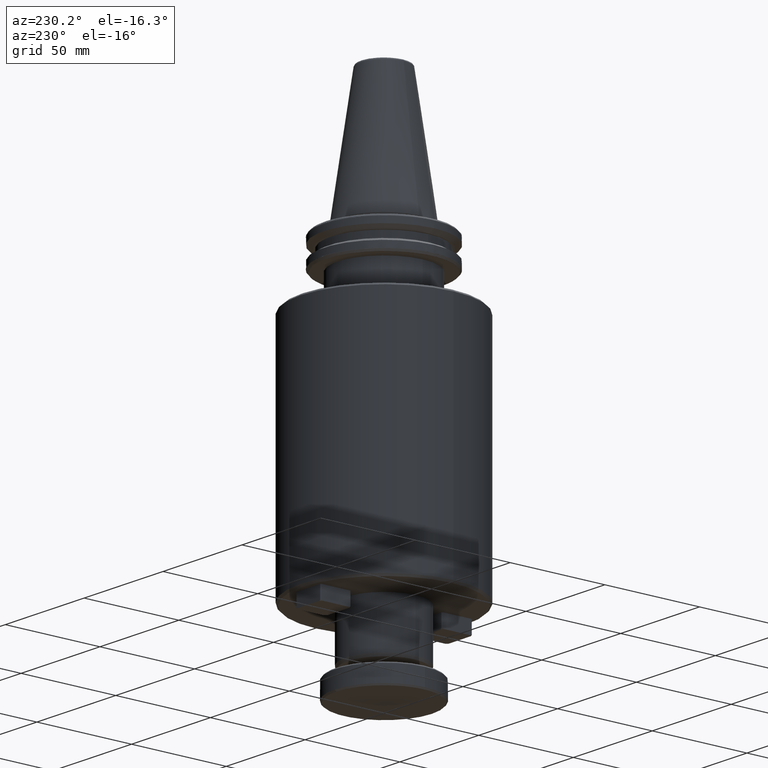
[diagram: clean part render]
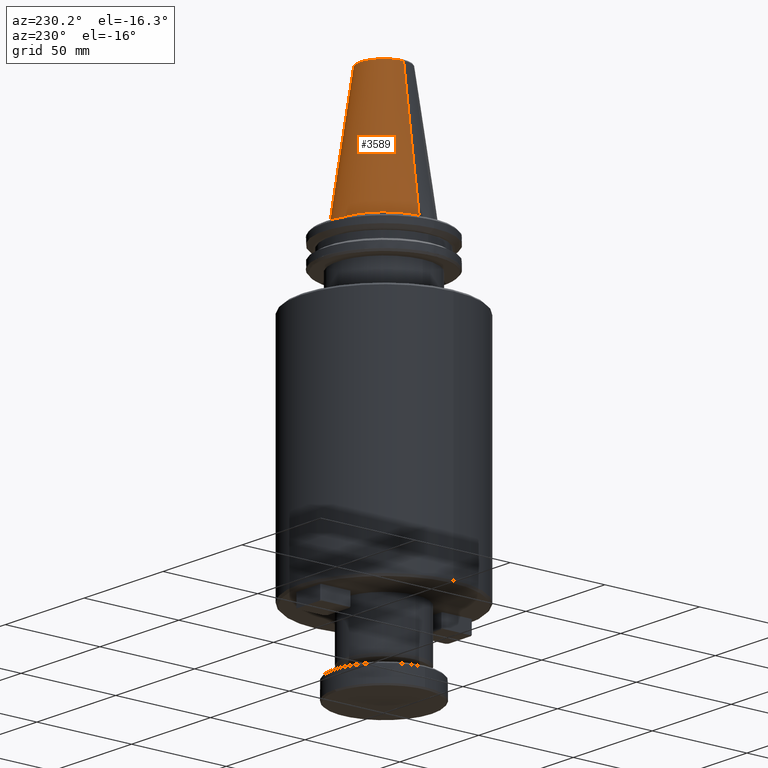
[diagram: same view with one face highlighted and labeled with its STEP entity id]
A machine part, auxiliary view. The second image highlights one B-rep face of the part: STEP entity #3589.
In plain terms, the highlighted conical surface has half-angle 8.297 deg.
Its self-contained STEP definition (entity closure, byte-faithful):
#12 = EDGE_LOOP ( 'NONE', ( #816, #711, #483, #715 ) ) ;
#68 = VERTEX_POINT ( 'NONE', #1368 ) ;
#483 = ORIENTED_EDGE ( 'NONE', *, *, #2769, .F. ) ;
#534 = CIRCLE ( 'NONE', #4208, 12.37469537611110800 ) ;
#583 = DIRECTION ( 'NONE',  ( 0.0000000000000000000, 0.0000000000000000000, -1.000000000000000000 ) ) ;
#711 = ORIENTED_EDGE ( 'NONE', *, *, #3923, .T. ) ;
#714 = VERTEX_POINT ( 'NONE', #2924 ) ;
#715 = ORIENTED_EDGE ( 'NONE', *, *, #1899, .F. ) ;
#816 = ORIENTED_EDGE ( 'NONE', *, *, #3818, .T. ) ;
#858 = CARTESIAN_POINT ( 'NONE',  ( -22.22500000000000100, 0.0000000000000000000, 0.0000000000000000000 ) ) ;
#874 = DIRECTION ( 'NONE',  ( -0.1443082272673070500, 0.0000000000000000000, -0.9895327864921743500 ) ) ;
#910 = LINE ( 'NONE', #1049, #957 ) ;
#957 = VECTOR ( 'NONE', #2401, 1000.000000000000000 ) ;
#1001 = CARTESIAN_POINT ( 'NONE',  ( 0.0000000000000000000, 0.0000000000000000000, 0.0000000000000000000 ) ) ;
#1014 = CARTESIAN_POINT ( 'NONE',  ( -12.37469537611110800, 0.0000000000000000000, 67.54430822726729400 ) ) ;
#1020 = CARTESIAN_POINT ( 'NONE',  ( 0.0000000000000000000, 0.0000000000000000000, 67.54430822726729400 ) ) ;
#1049 = CARTESIAN_POINT ( 'NONE',  ( 22.22500000000000100, 2.721777511104992800E-015, 0.0000000000000000000 ) ) ;
#1132 = LINE ( 'NONE', #858, #1394 ) ;
#1356 = DIRECTION ( 'NONE',  ( 1.000000000000000000, 0.0000000000000000000, 9.822541477422708000E-017 ) ) ;
#1368 = CARTESIAN_POINT ( 'NONE',  ( 12.37469537611110800, 2.118620309691397300E-015, 67.54430822726729400 ) ) ;
#1375 = DIRECTION ( 'NONE',  ( -1.000000000000000000, 0.0000000000000000000, 0.0000000000000000000 ) ) ;
#1394 = VECTOR ( 'NONE', #874, 1000.000000000000000 ) ;
#1776 = VERTEX_POINT ( 'NONE', #1014 ) ;
#1899 = EDGE_CURVE ( 'NONE', #1776, #714, #1132, .T. ) ;
#2028 = AXIS2_PLACEMENT_3D ( 'NONE', #3257, #583, #2934 ) ;
#2242 = CIRCLE ( 'NONE', #3361, 22.22500000000000500 ) ;
#2401 = DIRECTION ( 'NONE',  ( 0.1443082272673070500, 1.767266086135363700E-017, -0.9895327864921743500 ) ) ;
#2769 = EDGE_CURVE ( 'NONE', #714, #3292, #2242, .T. ) ;
#2924 = CARTESIAN_POINT ( 'NONE',  ( -22.22500000000000100, 0.0000000000000000000, 0.0000000000000000000 ) ) ;
#2934 = DIRECTION ( 'NONE',  ( -1.000000000000000000, 0.0000000000000000000, 0.0000000000000000000 ) ) ;
#3102 = FACE_OUTER_BOUND ( 'NONE', #12, .T. ) ;
#3257 = CARTESIAN_POINT ( 'NONE',  ( 0.0000000000000000000, 0.0000000000000000000, 0.0000000000000000000 ) ) ;
#3292 = VERTEX_POINT ( 'NONE', #3483 ) ;
#3328 = DIRECTION ( 'NONE',  ( -0.0000000000000000000, -0.0000000000000000000, -1.000000000000000000 ) ) ;
#3341 = DIRECTION ( 'NONE',  ( 0.0000000000000000000, 0.0000000000000000000, -1.000000000000000000 ) ) ;
#3361 = AXIS2_PLACEMENT_3D ( 'NONE', #1001, #3328, #1356 ) ;
#3396 = CONICAL_SURFACE ( 'NONE', #2028, 22.22500000000000100, 0.1448138465474190500 ) ;
#3483 = CARTESIAN_POINT ( 'NONE',  ( 22.22500000000000100, 2.721777511104992800E-015, 0.0000000000000000000 ) ) ;
#3589 = ADVANCED_FACE ( 'NONE', ( #3102 ), #3396, .T. ) ;
#3818 = EDGE_CURVE ( 'NONE', #1776, #68, #534, .T. ) ;
#3923 = EDGE_CURVE ( 'NONE', #68, #3292, #910, .T. ) ;
#4208 = AXIS2_PLACEMENT_3D ( 'NONE', #1020, #3341, #1375 ) ;